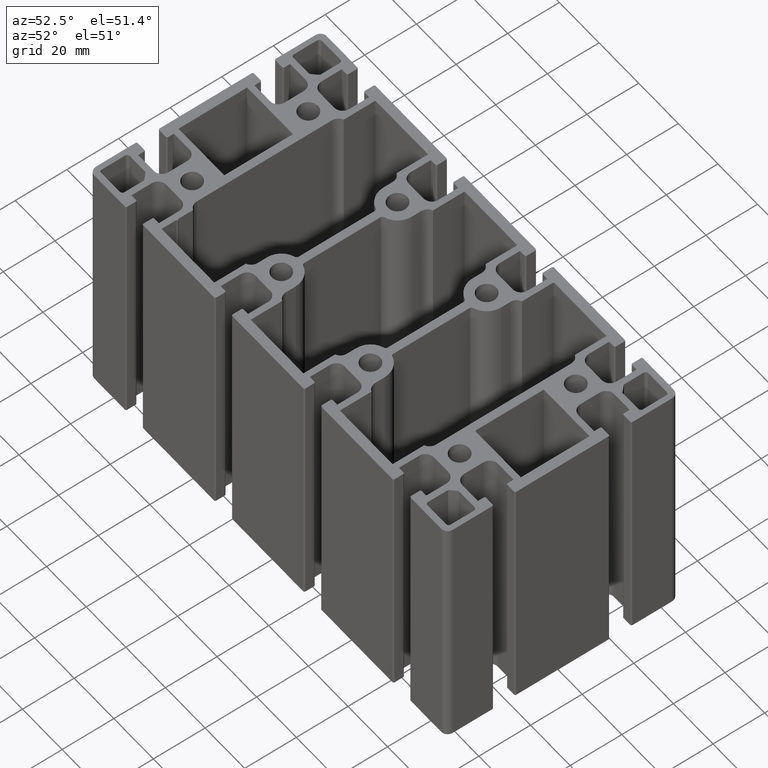
[diagram: clean part render]
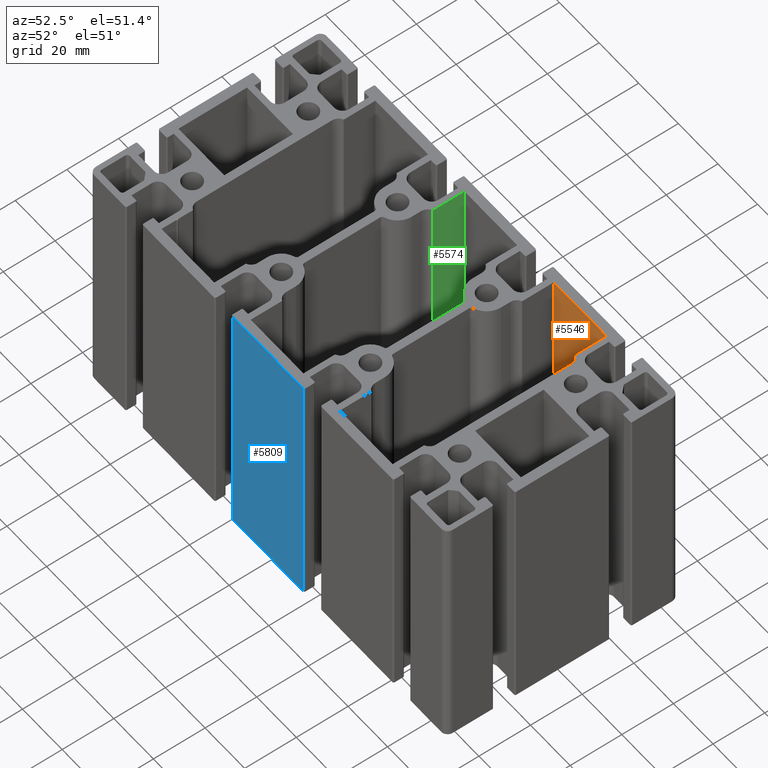
[diagram: same view with three faces highlighted in distinct colors, each labeled with its STEP entity id]
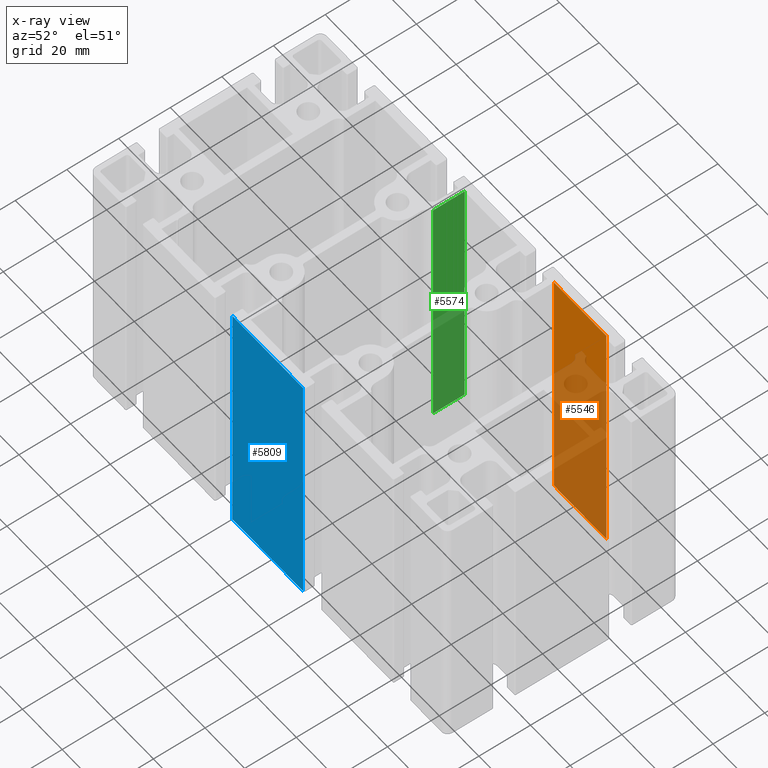
[diagram: x-ray of the same camera — body ghosted, the three highlighted faces saturated]
A machine part, auxiliary view with three faces highlighted in distinct colors.
The next image is the same camera in x-ray (body ghosted, the three faces saturated) — at least one of them is partly hidden behind the body in this view.
Their STEP definitions:

[orange] entity #5546 — the highlighted planar face has unit normal (0, 1, 0).
#443=FACE_OUTER_BOUND('',#731,.T.);
#731=EDGE_LOOP('',(#3716,#3717,#3718,#3719));
#1071=LINE('',#8110,#1671);
#1072=LINE('',#8113,#1672);
#1073=LINE('',#8115,#1673);
#1074=LINE('',#8116,#1674);
#1671=VECTOR('',#6432,100.);
#1672=VECTOR('',#6435,26.5999999999987);
#1673=VECTOR('',#6436,26.5999999999987);
#1674=VECTOR('',#6437,100.);
#2272=VERTEX_POINT('',#8106);
#2273=VERTEX_POINT('',#8108);
#2274=VERTEX_POINT('',#8112);
#2275=VERTEX_POINT('',#8114);
#2855=EDGE_CURVE('',#2273,#2272,#1071,.T.);
#2856=EDGE_CURVE('',#2272,#2274,#1072,.T.);
#2857=EDGE_CURVE('',#2275,#2273,#1073,.T.);
#2858=EDGE_CURVE('',#2275,#2274,#1074,.T.);
#3716=ORIENTED_EDGE('',*,*,#2856,.F.);
#3717=ORIENTED_EDGE('',*,*,#2855,.F.);
#3718=ORIENTED_EDGE('',*,*,#2857,.F.);
#3719=ORIENTED_EDGE('',*,*,#2858,.T.);
#5377=PLANE('',#5848);
#5546=ADVANCED_FACE('',(#443),#5377,.F.);
#5848=AXIS2_PLACEMENT_3D('',#8111,#6433,#6434);
#6432=DIRECTION('',(0.,0.,1.));
#6433=DIRECTION('center_axis',(0.,1.,0.));
#6434=DIRECTION('ref_axis',(-1.,0.,0.));
#6435=DIRECTION('',(1.,0.,0.));
#6436=DIRECTION('',(-1.,0.,0.));
#6437=DIRECTION('',(0.,0.,1.));
#8106=CARTESIAN_POINT('',(31.6999999999996,41.3999999999972,100.));
#8108=CARTESIAN_POINT('',(31.6999999999996,41.3999999999972,0.));
#8110=CARTESIAN_POINT('',(31.6999999999996,41.3999999999972,0.));
#8111=CARTESIAN_POINT('Origin',(58.2999999999982,41.3999999999972,0.));
#8112=CARTESIAN_POINT('',(58.2999999999982,41.3999999999972,100.));
#8113=CARTESIAN_POINT('',(29.1499999999991,41.3999999999972,100.));
#8114=CARTESIAN_POINT('',(58.2999999999982,41.3999999999972,0.));
#8115=CARTESIAN_POINT('',(29.1499999999991,41.3999999999972,0.));
#8116=CARTESIAN_POINT('',(58.2999999999982,41.3999999999972,0.));

[blue] entity #5809 — the highlighted planar face has unit normal (0, -1, 0).
#706=FACE_OUTER_BOUND('',#1002,.T.);
#1002=EDGE_LOOP('',(#4752,#4753,#4754,#4755));
#1297=LINE('',#8759,#1897);
#1374=LINE('',#8985,#1974);
#1630=LINE('',#9703,#2230);
#1631=LINE('',#9704,#2231);
#1897=VECTOR('',#7064,100.);
#1974=VECTOR('',#7283,100.);
#2230=VECTOR('',#7979,35.7000000000009);
#2231=VECTOR('',#7980,35.7000000000009);
#2492=VERTEX_POINT('',#8756);
#2493=VERTEX_POINT('',#8758);
#2570=VERTEX_POINT('',#8981);
#2571=VERTEX_POINT('',#8983);
#3176=EDGE_CURVE('',#2492,#2493,#1297,.T.);
#3288=EDGE_CURVE('',#2570,#2571,#1374,.T.);
#3644=EDGE_CURVE('',#2492,#2570,#1630,.T.);
#3645=EDGE_CURVE('',#2493,#2571,#1631,.T.);
#4752=ORIENTED_EDGE('',*,*,#3176,.F.);
#4753=ORIENTED_EDGE('',*,*,#3644,.T.);
#4754=ORIENTED_EDGE('',*,*,#3288,.T.);
#4755=ORIENTED_EDGE('',*,*,#3645,.F.);
#5525=PLANE('',#6341);
#5809=ADVANCED_FACE('',(#706),#5525,.T.);
#6341=AXIS2_PLACEMENT_3D('',#9702,#7977,#7978);
#7064=DIRECTION('',(0.,0.,-1.));
#7283=DIRECTION('',(0.,0.,-1.));
#7977=DIRECTION('center_axis',(0.,-1.,0.));
#7978=DIRECTION('ref_axis',(1.,0.,0.));
#7979=DIRECTION('',(-1.,0.,0.));
#7980=DIRECTION('',(-1.,0.,0.));
#8756=CARTESIAN_POINT('',(17.8500000000005,-44.9999999999999,100.));
#8758=CARTESIAN_POINT('',(17.8500000000005,-44.9999999999999,0.));
#8759=CARTESIAN_POINT('',(17.8500000000005,-45.,0.));
#8981=CARTESIAN_POINT('',(-17.8500000000004,-44.9999999999999,100.));
#8983=CARTESIAN_POINT('',(-17.8500000000004,-44.9999999999999,0.));
#8985=CARTESIAN_POINT('',(-17.8500000000004,-45.,0.));
#9702=CARTESIAN_POINT('Origin',(-87.5,-45.,0.));
#9703=CARTESIAN_POINT('',(-43.75,-45.,100.));
#9704=CARTESIAN_POINT('',(-43.75,-45.,0.));

[green] entity #5574 — the highlighted planar face has unit normal (-1, 0, 0).
#471=FACE_OUTER_BOUND('',#759,.T.);
#759=EDGE_LOOP('',(#3828,#3829,#3830,#3831));
#1127=LINE('',#8278,#1727);
#1128=LINE('',#8281,#1728);
#1129=LINE('',#8283,#1729);
#1130=LINE('',#8284,#1730);
#1727=VECTOR('',#6600,100.);
#1728=VECTOR('',#6603,12.2335206051616);
#1729=VECTOR('',#6604,12.2335206051616);
#1730=VECTOR('',#6605,100.);
#2328=VERTEX_POINT('',#8274);
#2329=VERTEX_POINT('',#8276);
#2330=VERTEX_POINT('',#8280);
#2331=VERTEX_POINT('',#8282);
#2939=EDGE_CURVE('',#2329,#2328,#1127,.T.);
#2940=EDGE_CURVE('',#2328,#2330,#1128,.T.);
#2941=EDGE_CURVE('',#2331,#2329,#1129,.T.);
#2942=EDGE_CURVE('',#2331,#2330,#1130,.T.);
#3828=ORIENTED_EDGE('',*,*,#2940,.F.);
#3829=ORIENTED_EDGE('',*,*,#2939,.F.);
#3830=ORIENTED_EDGE('',*,*,#2941,.F.);
#3831=ORIENTED_EDGE('',*,*,#2942,.T.);
#5391=PLANE('',#5904);
#5574=ADVANCED_FACE('',(#471),#5391,.F.);
#5904=AXIS2_PLACEMENT_3D('',#8279,#6601,#6602);
#6600=DIRECTION('',(0.,0.,1.));
#6601=DIRECTION('center_axis',(-1.,0.,0.));
#6602=DIRECTION('ref_axis',(0.,-1.,0.));
#6603=DIRECTION('',(0.,1.,0.));
#6604=DIRECTION('',(0.,-1.,0.));
#6605=DIRECTION('',(0.,0.,1.));
#8274=CARTESIAN_POINT('',(-13.3000000000006,29.1664793948357,100.));
#8276=CARTESIAN_POINT('',(-13.3000000000006,29.1664793948357,0.));
#8278=CARTESIAN_POINT('',(-13.3000000000006,29.1664793948357,0.));
#8279=CARTESIAN_POINT('Origin',(-13.3000000000006,41.3999999999973,0.));
#8280=CARTESIAN_POINT('',(-13.3000000000006,41.3999999999973,100.));
#8281=CARTESIAN_POINT('',(-13.3000000000006,20.6999999999987,100.));
#8282=CARTESIAN_POINT('',(-13.3000000000006,41.3999999999973,0.));
#8283=CARTESIAN_POINT('',(-13.3000000000006,20.6999999999987,0.));
#8284=CARTESIAN_POINT('',(-13.3000000000006,41.3999999999973,0.));